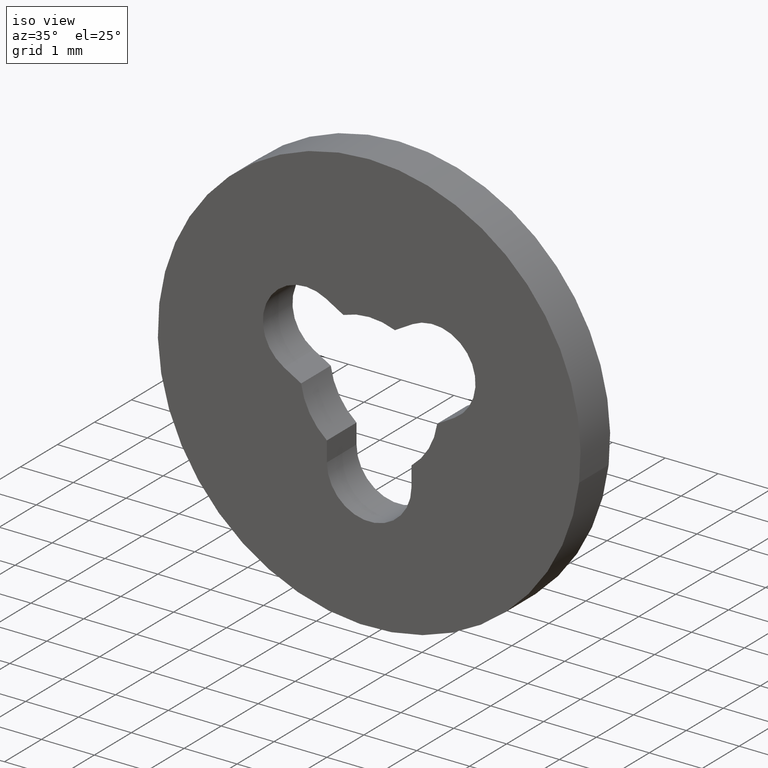
[diagram: clean part render]
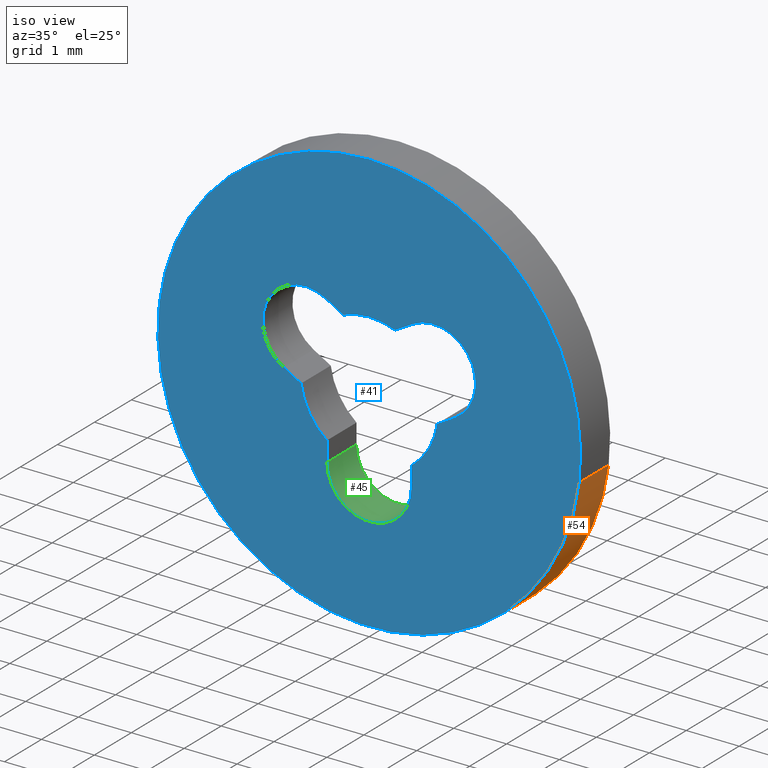
[diagram: same view with three faces highlighted in distinct colors, each labeled with its STEP entity id]
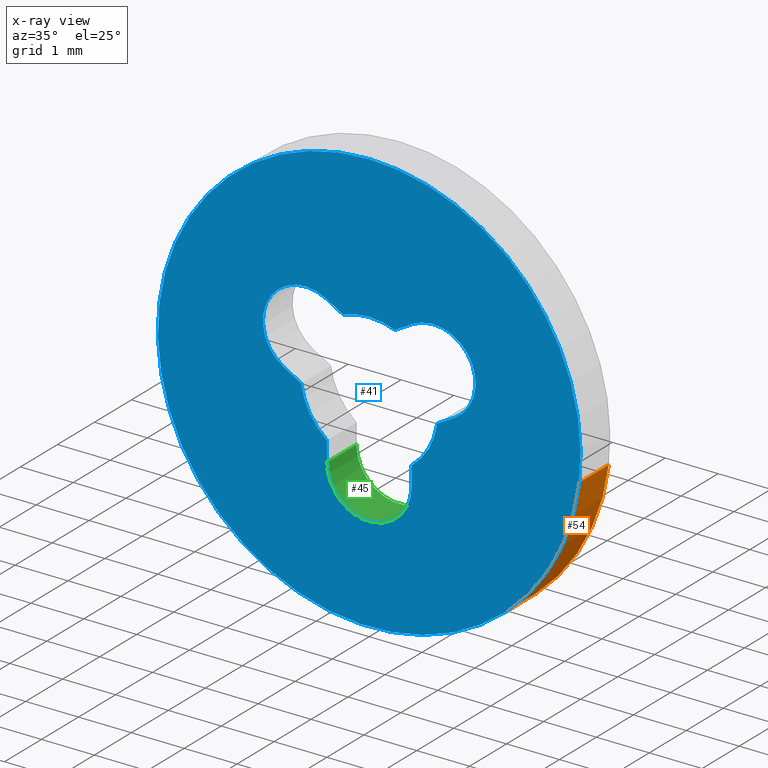
[diagram: x-ray of the same camera — body ghosted, the three highlighted faces saturated]
A machine part, iso view with three faces highlighted in distinct colors.
The next image is the same camera in x-ray (body ghosted, the three faces saturated) — at least one of them is partly hidden behind the body in this view.
Their STEP definitions:

[orange] entity #54 — the highlighted cylindrical surface (partial cylindrical patch) has radius 4 mm, axis along (0, 1, 0).
#54=ADVANCED_FACE('',(#199),#198,.T.);
#198=CYLINDRICAL_SURFACE('',#293,4.00000000000E+00);
#199=FACE_OUTER_BOUND('',#294,.T.);
#290=CARTESIAN_POINT('',(-2.26487813248E-16,8.20000000000E-01,1.36315784584E-16));
#291=DIRECTION('',(3.07055953275E-17,1.00000000000E+00,2.58322924375E-16));
#292=DIRECTION('',(9.93009526364E-01,-6.16297582204E-32,-1.18034234657E-01));
#293=AXIS2_PLACEMENT_3D('',#290,#291,#292);
#294=EDGE_LOOP('',(#378,#379,#380,#381));
#378=ORIENTED_EDGE('',*,*,#389,.T.);
#379=ORIENTED_EDGE('',*,*,#430,.F.);
#380=ORIENTED_EDGE('',*,*,#404,.F.);
#381=ORIENTED_EDGE('',*,*,#431,.T.);
#389=EDGE_CURVE('',#440,#432,#441,.T.);
#404=EDGE_CURVE('',#538,#545,#546,.T.);
#430=EDGE_CURVE('',#545,#432,#714,.T.);
#431=EDGE_CURVE('',#538,#440,#720,.T.);
#432=VERTEX_POINT('',#726);
#440=VERTEX_POINT('',#732);
#441=CIRCLE('',#736,4.00000000000E+00);
#538=VERTEX_POINT('',#796);
#545=VERTEX_POINT('',#801);
#546=CIRCLE('',#805,4.00000000000E+00);
#714=(BOUNDED_CURVE() B_SPLINE_CURVE(1,(#900,#901),.UNSPECIFIED.,.F.,.F.) B_SPLINE_CURVE_WITH_KNOTS((2,2),(8.33333730703E-02,9.16666640476E-01),.UNSPECIFIED.) CURVE() GEOMETRIC_REPRESENTATION_ITEM() RATIONAL_B_SPLINE_CURVE((1.00000000000E+00,1.00000000000E+00)) REPRESENTATION_ITEM('') );
#720=(BOUNDED_CURVE() B_SPLINE_CURVE(1,(#902,#903),.UNSPECIFIED.,.F.,.F.) B_SPLINE_CURVE_WITH_KNOTS((2,2),(8.33333333340E-02,9.16666666667E-01),.UNSPECIFIED.) CURVE() GEOMETRIC_REPRESENTATION_ITEM() RATIONAL_B_SPLINE_CURVE((7.50000000000E-01,7.50000000000E-01)) REPRESENTATION_ITEM('') );
#726=CARTESIAN_POINT('',(3.97203811599E+00,8.00000000000E-01,-4.72136849999E-01));
#732=CARTESIAN_POINT('',(-3.97195644415E+00,8.00000000000E-01,4.72823440361E-01));
#733=CARTESIAN_POINT('',(-5.40234523783E-13,8.00000000000E-01,-1.18860477016E-12));
#734=DIRECTION('',(9.79792073693E-17,-1.00000000000E+00,3.53993598145E-16));
#735=DIRECTION('',(1.30104260698E-13,3.53993598145E-16,1.00000000000E+00));
#736=AXIS2_PLACEMENT_3D('',#733,#734,#735);
#796=CARTESIAN_POINT('',(-3.97195644415E+00,1.94590009636E-14,4.72823440361E-01));
#801=CARTESIAN_POINT('',(3.97203811599E+00,3.87959143024E-14,-4.72136849999E-01));
#802=CARTESIAN_POINT('',(-5.54223333893E-13,2.90991428058E-14,-1.21858079183E-12));
#803=DIRECTION('',(1.20744745506E-14,-1.00000000000E+00,8.10432433924E-14));
#804=DIRECTION('',(1.41581191215E-13,8.10432433924E-14,1.00000000000E+00));
#805=AXIS2_PLACEMENT_3D('',#802,#803,#804);
#900=CARTESIAN_POINT('',(3.97203810545E+00,3.81468312355E-08,-4.72136938627E-01));
#901=CARTESIAN_POINT('',(3.97203810545E+00,7.99999974857E-01,-4.72136938627E-01));
#902=CARTESIAN_POINT('',(-3.97203810545E+00,2.60902410787E-14,4.72136938627E-01));
#903=CARTESIAN_POINT('',(-3.97203810545E+00,8.00000000000E-01,4.72136938627E-01));

[blue] entity #41 — the highlighted planar face has unit normal (-0, 1, 0).
#41=ADVANCED_FACE('',(#68,#69),#67,.F.);
#67=PLANE('',#227);
#68=FACE_OUTER_BOUND('',#228,.T.);
#69=FACE_BOUND('',#229,.T.);
#224=CARTESIAN_POINT('',(-8.31384387633E+00,0.00000000000E+00,5.20000000000E+00));
#225=DIRECTION('',(-0.00000000000E+00,1.00000000000E+00,0.00000000000E+00));
#226=DIRECTION('',(1.00000000000E+00,0.00000000000E+00,0.00000000000E+00));
#227=AXIS2_PLACEMENT_3D('',#224,#225,#226);
#228=EDGE_LOOP('',(#315,#316,#317));
#229=EDGE_LOOP('',(#318,#319,#320,#321,#322,#323,#324,#325,#326,#327,#328,#329));
#315=ORIENTED_EDGE('',*,*,#403,.T.);
#316=ORIENTED_EDGE('',*,*,#404,.T.);
#317=ORIENTED_EDGE('',*,*,#405,.T.);
#318=ORIENTED_EDGE('',*,*,#406,.F.);
#319=ORIENTED_EDGE('',*,*,#407,.F.);
#320=ORIENTED_EDGE('',*,*,#408,.F.);
#321=ORIENTED_EDGE('',*,*,#409,.F.);
#322=ORIENTED_EDGE('',*,*,#410,.F.);
#323=ORIENTED_EDGE('',*,*,#411,.F.);
#324=ORIENTED_EDGE('',*,*,#412,.F.);
#325=ORIENTED_EDGE('',*,*,#413,.F.);
#326=ORIENTED_EDGE('',*,*,#414,.F.);
#327=ORIENTED_EDGE('',*,*,#415,.F.);
#328=ORIENTED_EDGE('',*,*,#416,.F.);
#329=ORIENTED_EDGE('',*,*,#417,.F.);
#403=EDGE_CURVE('',#537,#538,#539,.T.);
#404=EDGE_CURVE('',#538,#545,#546,.T.);
#405=EDGE_CURVE('',#545,#537,#552,.T.);
#406=EDGE_CURVE('',#558,#559,#560,.T.);
#407=EDGE_CURVE('',#566,#558,#567,.T.);
#408=EDGE_CURVE('',#573,#566,#574,.T.);
#409=EDGE_CURVE('',#580,#573,#581,.T.);
#410=EDGE_CURVE('',#587,#580,#588,.T.);
#411=EDGE_CURVE('',#594,#587,#595,.T.);
#412=EDGE_CURVE('',#601,#594,#602,.T.);
#413=EDGE_CURVE('',#608,#601,#609,.T.);
#414=EDGE_CURVE('',#615,#608,#616,.T.);
#415=EDGE_CURVE('',#622,#615,#623,.T.);
#416=EDGE_CURVE('',#629,#622,#630,.T.);
#417=EDGE_CURVE('',#559,#629,#636,.T.);
#537=VERTEX_POINT('',#795);
#538=VERTEX_POINT('',#796);
#539=CIRCLE('',#800,4.00000000000E+00);
#545=VERTEX_POINT('',#801);
#546=CIRCLE('',#805,4.00000000000E+00);
#552=CIRCLE('',#809,4.00000000000E+00);
#558=VERTEX_POINT('',#810);
#559=VERTEX_POINT('',#811);
#560=CIRCLE('',#815,8.00034399239E-01);
#566=VERTEX_POINT('',#816);
#567=LINE('',#817,#818);
#573=VERTEX_POINT('',#820);
#574=CIRCLE('',#824,1.30000373925E+00);
#580=VERTEX_POINT('',#825);
#581=LINE('',#826,#827);
#587=VERTEX_POINT('',#829);
#588=CIRCLE('',#833,8.00000000000E-01);
#594=VERTEX_POINT('',#834);
#595=LINE('',#835,#836);
#601=VERTEX_POINT('',#838);
#602=CIRCLE('',#842,1.30000000000E+00);
#608=VERTEX_POINT('',#843);
#609=LINE('',#844,#845);
#615=VERTEX_POINT('',#847);
#616=CIRCLE('',#851,8.00034399239E-01);
#622=VERTEX_POINT('',#852);
#623=LINE('',#853,#854);
#629=VERTEX_POINT('',#856);
#630=CIRCLE('',#860,1.30000000000E+00);
#636=LINE('',#861,#862);
#795=CARTESIAN_POINT('',(1.36002320517E-14,3.53272116375E-13,4.00000000000E+00));
#796=CARTESIAN_POINT('',(-3.97195644415E+00,1.94590009636E-14,4.72823440361E-01));
#797=CARTESIAN_POINT('',(-5.54223333893E-13,2.90991428058E-14,-1.21858079183E-12));
#798=DIRECTION('',(1.20744745506E-14,-1.00000000000E+00,8.10432433924E-14));
#799=DIRECTION('',(1.41581191215E-13,8.10432433924E-14,1.00000000000E+00));
#800=AXIS2_PLACEMENT_3D('',#797,#798,#799);
#801=CARTESIAN_POINT('',(3.97203811599E+00,3.87959143024E-14,-4.72136849999E-01));
#802=CARTESIAN_POINT('',(-5.54223333893E-13,2.90991428058E-14,-1.21858079183E-12));
#803=DIRECTION('',(1.20744745506E-14,-1.00000000000E+00,8.10432433924E-14));
#804=DIRECTION('',(1.41581191215E-13,8.10432433924E-14,1.00000000000E+00));
#805=AXIS2_PLACEMENT_3D('',#802,#803,#804);
#806=CARTESIAN_POINT('',(-5.54223333893E-13,2.90991428058E-14,-1.21858079183E-12));
#807=DIRECTION('',(1.20744745506E-14,-1.00000000000E+00,8.10432433924E-14));
#808=DIRECTION('',(1.41581191215E-13,8.10432433924E-14,1.00000000000E+00));
#809=AXIS2_PLACEMENT_3D('',#806,#807,#808);
#810=CARTESIAN_POINT('',(1.61239999087E+00,0.00000000000E+00,7.09999473246E-03));
#811=CARTESIAN_POINT('',(8.16907166695E-01,0.00000000000E+00,1.39540306212E+00));
#812=CARTESIAN_POINT('',(1.21244490187E+00,0.00000000000E+00,6.99985964243E-01));
#813=DIRECTION('',(0.00000000000E+00,-1.00000000000E+00,0.00000000000E+00));
#814=DIRECTION('',(-4.99922365069E-01,-0.00000000000E+00,8.66070221693E-01));
#815=AXIS2_PLACEMENT_3D('',#812,#813,#814);
#816=CARTESIAN_POINT('',(1.28740886990E+00,0.00000000000E+00,-1.80494880023E-01));
#817=CARTESIAN_POINT('',(1.28740886990E+00,0.00000000000E+00,-1.80494880023E-01));
#818=VECTOR('',#819,3.75248005658E-01);
#819=DIRECTION('',(8.66070215109E-01,0.00000000000E+00,4.99922376475E-01));
#820=CARTESIAN_POINT('',(8.00000000000E-01,0.00000000000E+00,-1.02470000000E+00));
#821=CARTESIAN_POINT('',(-4.26816521948E-06,0.00000000000E+00,-3.51177498259E-06));
#822=DIRECTION('',(0.00000000000E+00,-1.00000000000E+00,0.00000000000E+00));
#823=DIRECTION('',(-6.15386128525E-01,-0.00000000000E+00,7.88225800655E-01));
#824=AXIS2_PLACEMENT_3D('',#821,#822,#823);
#825=CARTESIAN_POINT('',(8.00000000000E-01,0.00000000000E+00,-1.39999986037E+00));
#826=CARTESIAN_POINT('',(8.00000000000E-01,0.00000000000E+00,-1.39999986037E+00));
#827=VECTOR('',#828,3.75299860374E-01);
#828=DIRECTION('',(5.85729391578E-14,0.00000000000E+00,1.00000000000E+00));
#829=CARTESIAN_POINT('',(-8.00000000000E-01,0.00000000000E+00,-1.40000000000E+00));
#830=CARTESIAN_POINT('',(5.09314874389E-15,0.00000000000E+00,-1.40000000000E+00));
#831=DIRECTION('',(0.00000000000E+00,-1.00000000000E+00,0.00000000000E+00));
#832=DIRECTION('',(-1.00000000000E+00,0.00000000000E+00,5.95113151466E-15));
#833=AXIS2_PLACEMENT_3D('',#830,#831,#832);
#834=CARTESIAN_POINT('',(-8.00002281233E-01,0.00000000000E+00,-1.02469329559E+00));
#835=CARTESIAN_POINT('',(-8.00002281233E-01,0.00000000000E+00,-1.02469329559E+00));
#836=VECTOR('',#837,3.75306704419E-01);
#837=DIRECTION('',(6.07831649725E-06,0.00000000000E+00,-9.99999999982E-01));
#838=CARTESIAN_POINT('',(-1.28740006281E+00,0.00000000000E+00,-1.80557686819E-01));
#839=CARTESIAN_POINT('',(4.44089209850E-16,0.00000000000E+00,-1.11022302463E-16));
#840=DIRECTION('',(0.00000000000E+00,-1.00000000000E+00,-0.00000000000E+00));
#841=DIRECTION('',(9.90307740625E-01,-0.00000000000E+00,1.38890528323E-01));
#842=AXIS2_PLACEMENT_3D('',#839,#840,#841);
#843=CARTESIAN_POINT('',(-1.61250000000E+00,0.00000000000E+00,7.09999999999E-03));
#844=CARTESIAN_POINT('',(-1.61250000000E+00,0.00000000000E+00,7.09999999999E-03));
#845=VECTOR('',#846,3.75373649290E-01);
#846=DIRECTION('',(8.66070215109E-01,0.00000000000E+00,-4.99922376475E-01));
#847=CARTESIAN_POINT('',(-8.17007166695E-01,0.00000000000E+00,1.39540306212E+00));
#848=CARTESIAN_POINT('',(-1.21254490187E+00,0.00000000000E+00,6.99985964243E-01));
#849=DIRECTION('',(0.00000000000E+00,-1.00000000000E+00,0.00000000000E+00));
#850=DIRECTION('',(-4.94400910201E-01,-0.00000000000E+00,-8.69233996109E-01));
#851=AXIS2_PLACEMENT_3D('',#848,#849,#850);
#852=CARTESIAN_POINT('',(-4.87532842887E-01,0.00000000000E+00,1.20511896803E+00));
#853=CARTESIAN_POINT('',(-4.87532842887E-01,0.00000000000E+00,1.20511896803E+00));
#854=VECTOR('',#855,3.80475185146E-01);
#855=DIRECTION('',(-8.65954828780E-01,0.00000000000E+00,5.00122219575E-01));
#856=CARTESIAN_POINT('',(4.87474034111E-01,0.00000000000E+00,1.20514275755E+00));
#857=CARTESIAN_POINT('',(2.77410066489E-16,0.00000000000E+00,4.66293670343E-15));
#858=DIRECTION('',(0.00000000000E+00,-1.00000000000E+00,0.00000000000E+00));
#859=DIRECTION('',(-3.74980026239E-01,-0.00000000000E+00,-9.27032890421E-01));
#860=AXIS2_PLACEMENT_3D('',#857,#858,#859);
#861=CARTESIAN_POINT('',(8.16907166695E-01,0.00000000000E+00,1.39540306212E+00));
#862=VECTOR('',#863,3.80427617740E-01);
#863=DIRECTION('',(-8.65954828780E-01,0.00000000000E+00,-5.00122219575E-01));

[green] entity #45 — the highlighted cylindrical surface (partial cylindrical patch) has radius 0.8 mm, axis along (0, -1, -0).
#45=ADVANCED_FACE('',(#109),#108,.F.);
#108=CYLINDRICAL_SURFACE('',#248,8.00000000000E-01);
#109=FACE_OUTER_BOUND('',#249,.T.);
#245=CARTESIAN_POINT('',(3.81639164715E-17,-2.05000000000E-02,-1.40000000000E+00));
#246=DIRECTION('',(0.00000000000E+00,-1.00000000000E+00,-0.00000000000E+00));
#247=DIRECTION('',(8.72653549838E-03,0.00000000000E+00,9.99961923064E-01));
#248=AXIS2_PLACEMENT_3D('',#245,#246,#247);
#249=EDGE_LOOP('',(#342,#343,#344,#345));
#342=ORIENTED_EDGE('',*,*,#410,.T.);
#343=ORIENTED_EDGE('',*,*,#421,.F.);
#344=ORIENTED_EDGE('',*,*,#400,.F.);
#345=ORIENTED_EDGE('',*,*,#422,.T.);
#400=EDGE_CURVE('',#510,#517,#518,.T.);
#410=EDGE_CURVE('',#587,#580,#588,.T.);
#421=EDGE_CURVE('',#517,#580,#660,.T.);
#422=EDGE_CURVE('',#510,#587,#666,.T.);
#510=VERTEX_POINT('',#778);
#517=VERTEX_POINT('',#782);
#518=CIRCLE('',#786,8.00000000000E-01);
#580=VERTEX_POINT('',#825);
#587=VERTEX_POINT('',#829);
#588=CIRCLE('',#833,8.00000000000E-01);
#660=LINE('',#873,#874);
#666=LINE('',#876,#877);
#778=CARTESIAN_POINT('',(-8.00000000000E-01,8.00000000000E-01,-1.40000000000E+00));
#782=CARTESIAN_POINT('',(8.00000000000E-01,8.00000000000E-01,-1.39999986037E+00));
#783=CARTESIAN_POINT('',(5.09314874389E-15,8.00000000000E-01,-1.40000000000E+00));
#784=DIRECTION('',(-5.39260357259E-31,-1.00000000000E+00,-9.25185807240E-17));
#785=DIRECTION('',(-1.00000000000E+00,-1.13298841801E-32,5.95113151466E-15));
#786=AXIS2_PLACEMENT_3D('',#783,#784,#785);
#825=CARTESIAN_POINT('',(8.00000000000E-01,0.00000000000E+00,-1.39999986037E+00));
#829=CARTESIAN_POINT('',(-8.00000000000E-01,0.00000000000E+00,-1.40000000000E+00));
#830=CARTESIAN_POINT('',(5.09314874389E-15,0.00000000000E+00,-1.40000000000E+00));
#831=DIRECTION('',(0.00000000000E+00,-1.00000000000E+00,0.00000000000E+00));
#832=DIRECTION('',(-1.00000000000E+00,0.00000000000E+00,5.95113151466E-15));
#833=AXIS2_PLACEMENT_3D('',#830,#831,#832);
#873=CARTESIAN_POINT('',(8.00000000000E-01,8.00000000000E-01,-1.39999986037E+00));
#874=VECTOR('',#875,8.00000000000E-01);
#875=DIRECTION('',(0.00000000000E+00,-1.00000000000E+00,0.00000000000E+00));
#876=CARTESIAN_POINT('',(-8.00000000000E-01,8.00000000000E-01,-1.40000000000E+00));
#877=VECTOR('',#878,8.00000000000E-01);
#878=DIRECTION('',(0.00000000000E+00,-1.00000000000E+00,0.00000000000E+00));